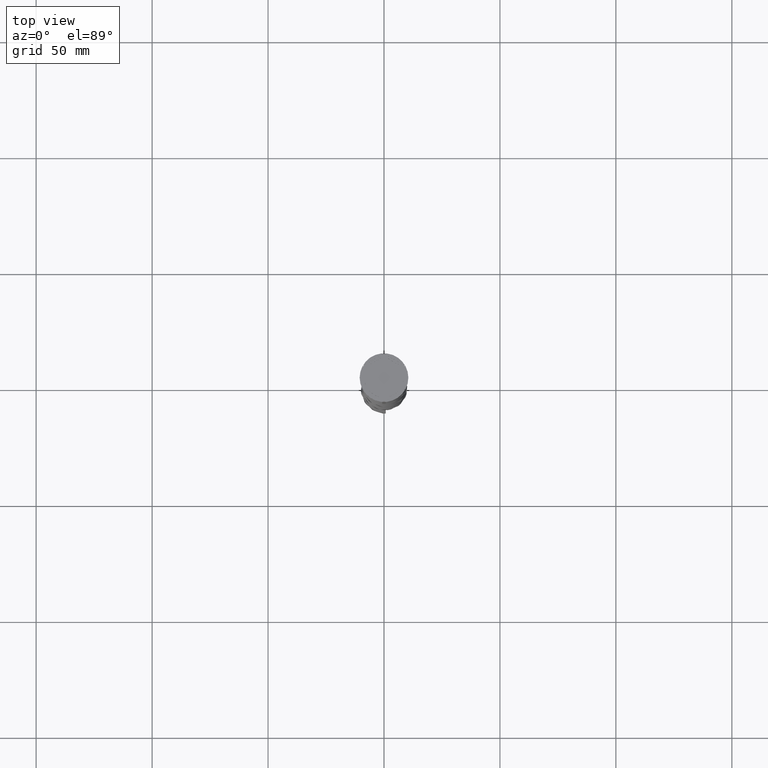
[diagram: clean part render]
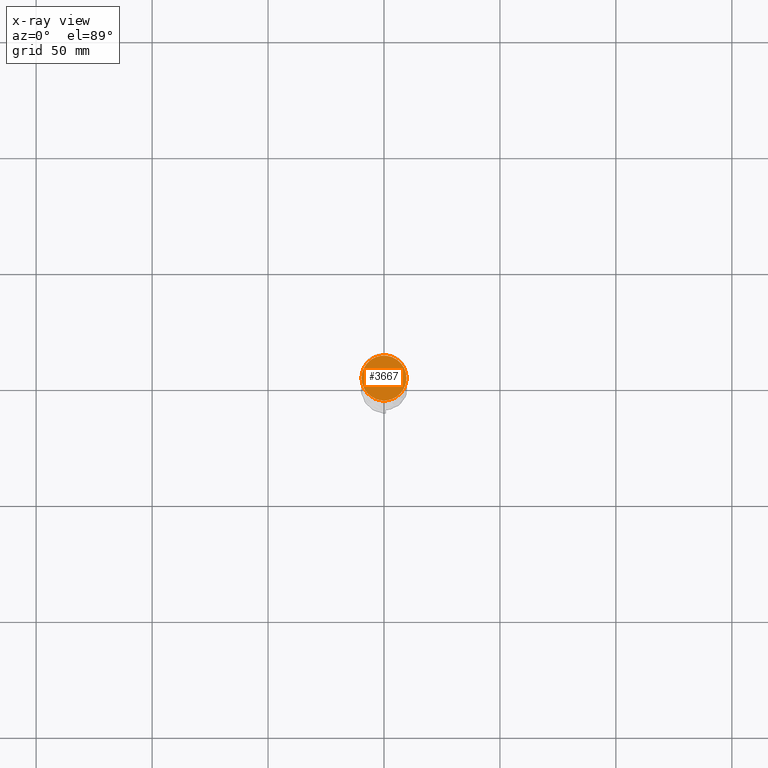
[diagram: x-ray — body ghosted, one internal face saturated and labeled with its STEP entity id]
A machine part, top view, then the same camera in x-ray: the body is ghosted and one INTERNAL B-rep face — a face not visible from any outside direction — is saturated and labeled: STEP entity #3667.
In plain terms, the highlighted planar face has unit normal (0, 0, -1).
Its self-contained STEP definition (entity closure, byte-faithful):
#27 = PLANE ( 'NONE',  #3139 ) ;
#131 = EDGE_LOOP ( 'NONE', ( #2463, #3680 ) ) ;
#181 = DIRECTION ( 'NONE',  ( -0.000000000000000000, -0.000000000000000000, 1.000000000000000000 ) ) ;
#219 = AXIS2_PLACEMENT_3D ( 'NONE', #883, #954, #2185 ) ;
#498 = EDGE_CURVE ( 'NONE', #2308, #3995, #1664, .T. ) ;
#604 = CARTESIAN_POINT ( 'NONE',  ( -9.700000000000002842, 0.000000000000000000, -12.00000000000000000 ) ) ;
#883 = CARTESIAN_POINT ( 'NONE',  ( 0.000000000000000000, 0.000000000000000000, -12.00000000000000000 ) ) ;
#954 = DIRECTION ( 'NONE',  ( -0.000000000000000000, -0.000000000000000000, 1.000000000000000000 ) ) ;
#992 = DIRECTION ( 'NONE',  ( -1.000000000000000000, 0.000000000000000000, -0.000000000000000000 ) ) ;
#1106 = EDGE_CURVE ( 'NONE', #3995, #2308, #2493, .T. ) ;
#1273 = FACE_OUTER_BOUND ( 'NONE', #131, .T. ) ;
#1526 = AXIS2_PLACEMENT_3D ( 'NONE', #2757, #181, #2822 ) ;
#1664 = CIRCLE ( 'NONE', #1526, 9.700000000000002842 ) ;
#2185 = DIRECTION ( 'NONE',  ( -1.000000000000000000, 0.000000000000000000, 0.000000000000000000 ) ) ;
#2308 = VERTEX_POINT ( 'NONE', #3645 ) ;
#2463 = ORIENTED_EDGE ( 'NONE', *, *, #1106, .T. ) ;
#2493 = CIRCLE ( 'NONE', #219, 9.700000000000002842 ) ;
#2597 = DIRECTION ( 'NONE',  ( 0.000000000000000000, 0.000000000000000000, -1.000000000000000000 ) ) ;
#2757 = CARTESIAN_POINT ( 'NONE',  ( 0.000000000000000000, 0.000000000000000000, -12.00000000000000000 ) ) ;
#2822 = DIRECTION ( 'NONE',  ( -1.000000000000000000, 0.000000000000000000, 0.000000000000000000 ) ) ;
#3139 = AXIS2_PLACEMENT_3D ( 'NONE', #3310, #2597, #992 ) ;
#3310 = CARTESIAN_POINT ( 'NONE',  ( 0.000000000000000000, 0.000000000000000000, -12.00000000000000000 ) ) ;
#3645 = CARTESIAN_POINT ( 'NONE',  ( 9.700000000000002842, 1.206277097160143024E-15, -12.00000000000000000 ) ) ;
#3667 = ADVANCED_FACE ( 'NONE', ( #1273 ), #27, .F. ) ;
#3680 = ORIENTED_EDGE ( 'NONE', *, *, #498, .T. ) ;
#3995 = VERTEX_POINT ( 'NONE', #604 ) ;